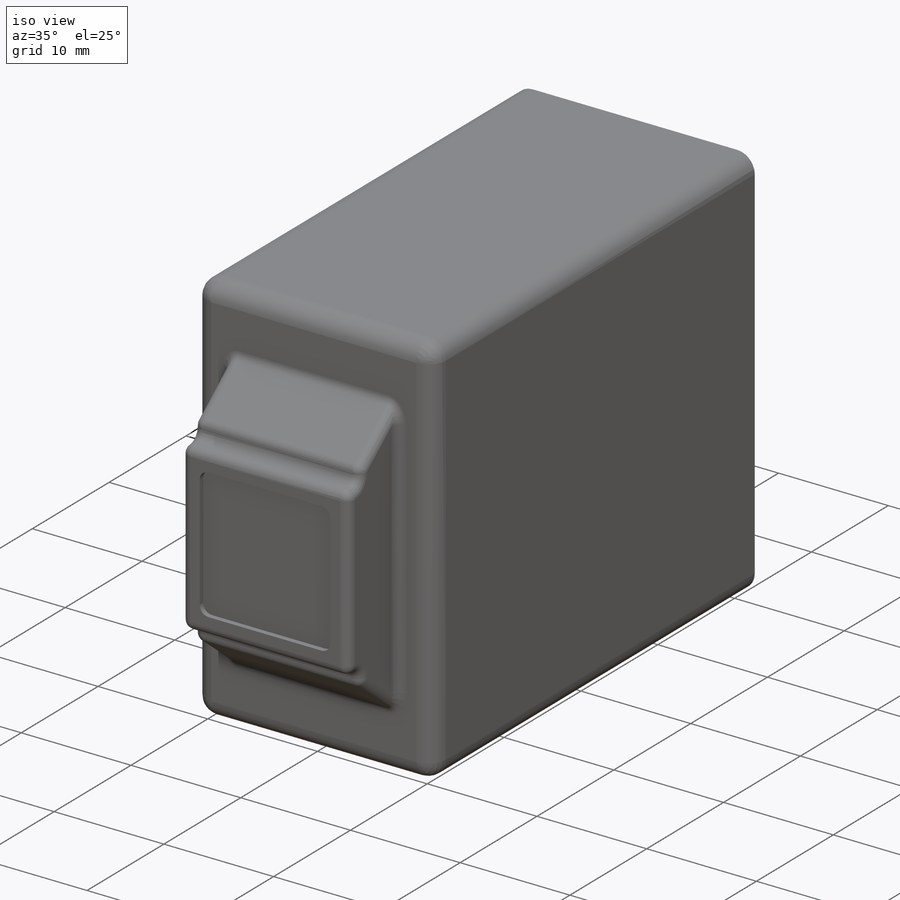
[diagram: iso view]
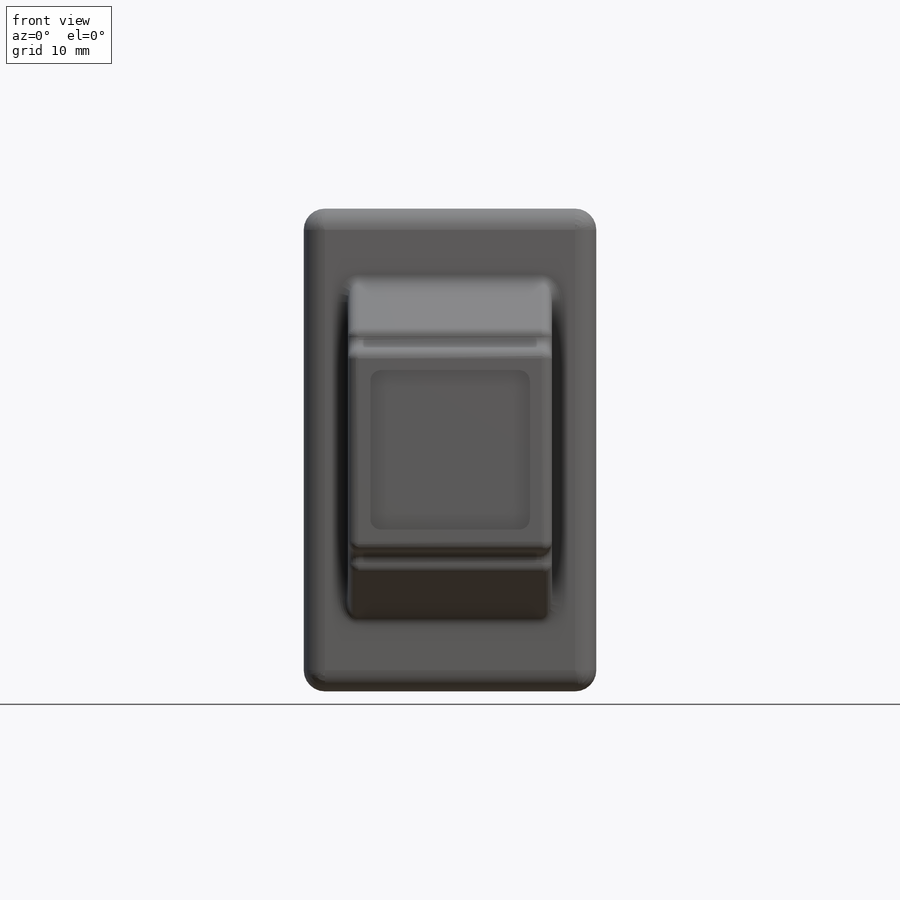
[diagram: front view]
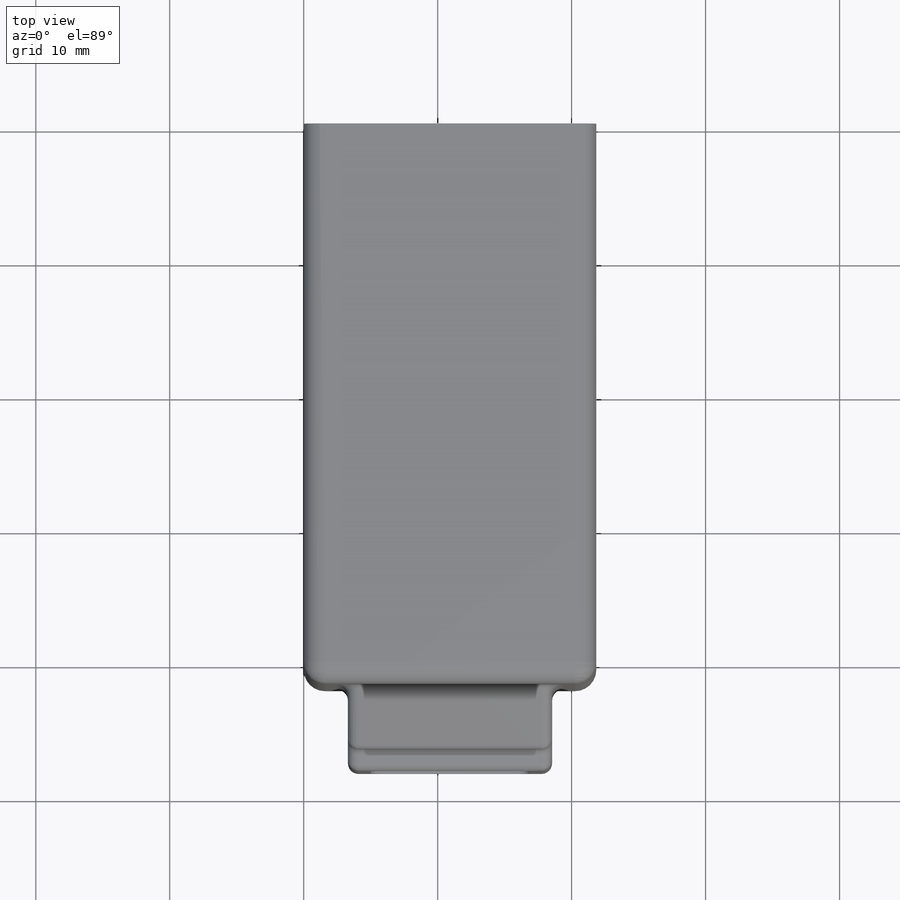
[diagram: top view]
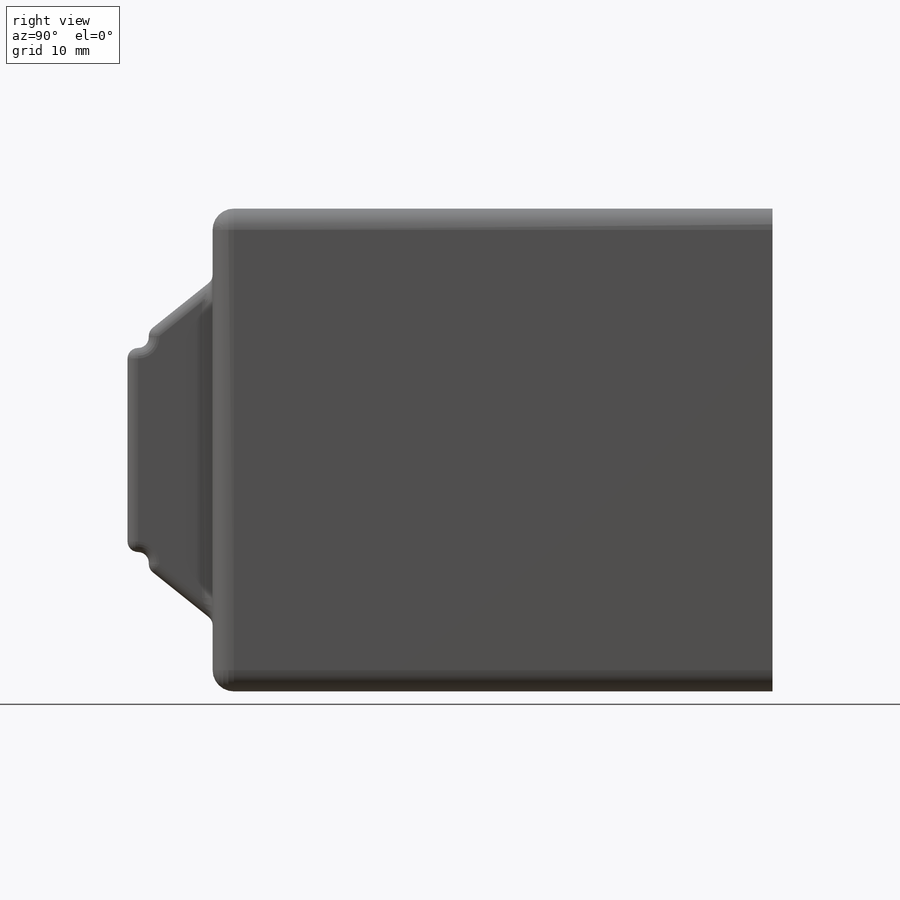
[diagram: right view]
SOLIDWORKS PART (.sldprt)
format: sldprt  version: not decoded by parser v0  size: 452,096 bytes
history: native  units: mm
features: sketch x6, extrude x5, fillet x4, material x1, shell x1, cut_extrude x1 (+16 scaffold rows collapsed)
feature tree (34):
  scaffold x16  (default folders/planes/origin — collapsed)
  material  "Alloy Steel"
  sketch  "Sketch1"  dims[D1=21.844mm D2=36.0426mm]
  extrude  "Extrude1"  Depth=41.7957mm
  fillet  "Fillet1"  Radius=1.5875mm
  sketch  "Sketch2"  dims[D1=8.89mm D2=8.89mm D3=7.62mm D4=7.62mm]
  extrude  "Extrude2"  Depth=4.7625mm
  sketch  "Sketch4"  dims[D1=0.0mm D2=1.27mm]
  extrude  "Extrude3"  Depth=1.5875mm
  sketch  "Sketch5"  dims[D1=12.7mm]
  extrude  "Extrude4"  [1 undecoded]
  fillet  "Fillet8"  Radius=0.79375mm
  fillet  "Fillet9"  Radius=0.79375mm
  shell  "Shell1"  Thickness=0.4572mm
  sketch  "Sketch6"  dims[D1=~11.90625mm D2=~11.90625mm]
  cut_extrude  "Extrude5"  [1 undecoded]
  fillet  "Fillet10"  Radius=0.79375mm
  sketch  "Sketch7"  dims[D1=0.127mm]
  extrude  "Extrude6"  Depth=0.79375mm
decode coverage: 15 of 17 modeling features carry decoded parameters
note: ~ marks probable driven/reference dimensions
note: 2 parameter values undecoded
note: suppression state not decoded; provenance and decode notes live in map.json
